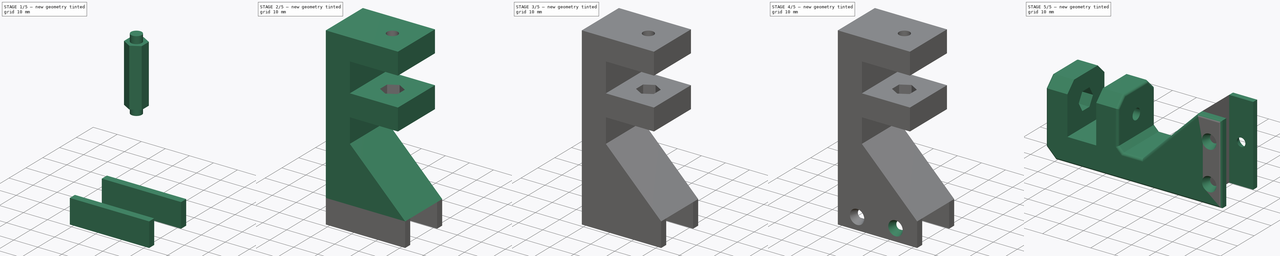
[diagram: build sequence overview — one tinted view per stage of 5, left to right]
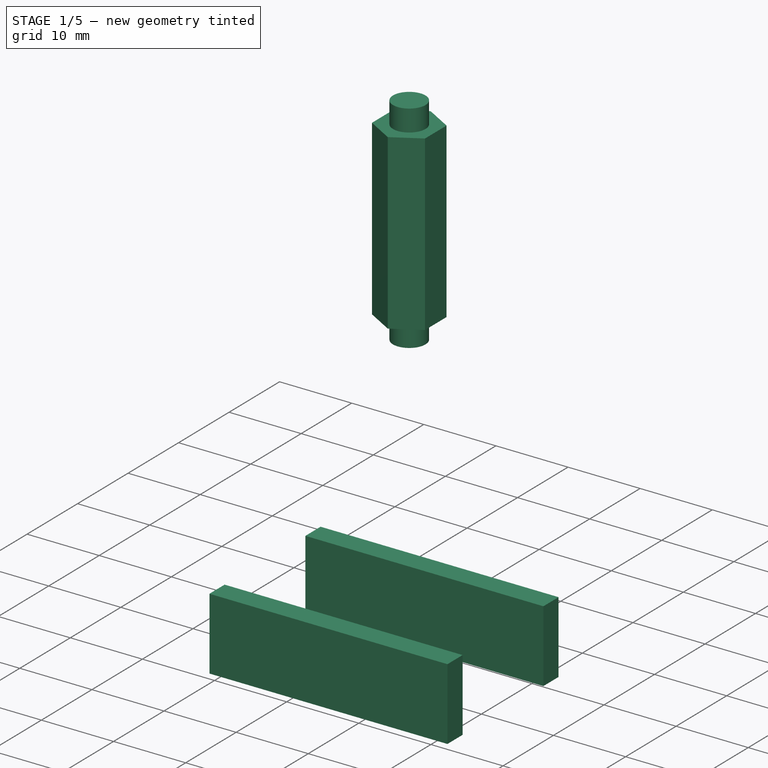
[diagram: stage 1 of 5 — iso view after this stage's code; geometry added in this stage tinted green]
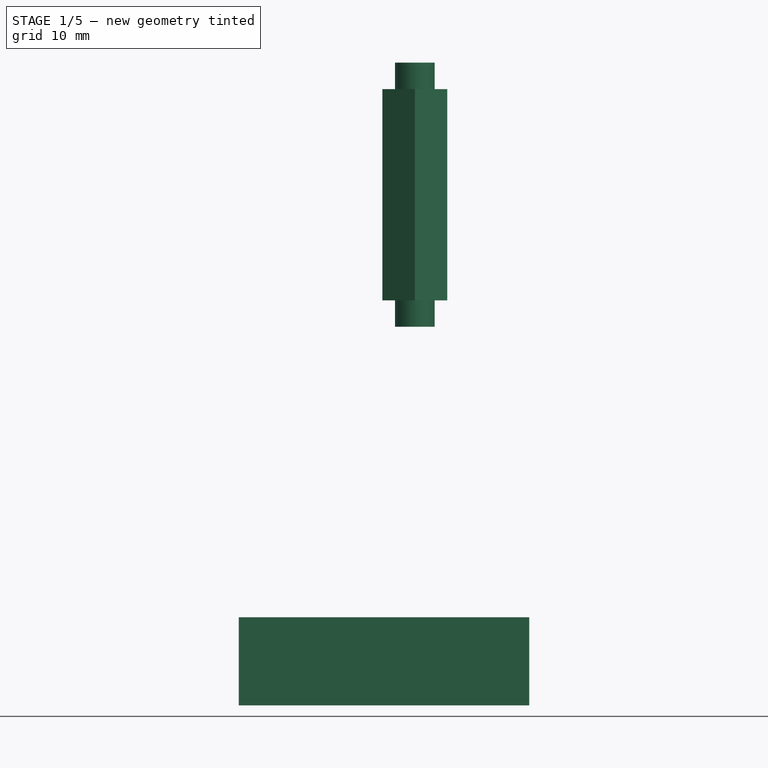
[diagram: stage 1 of 5 — front view after this stage's code; geometry added in this stage tinted green]
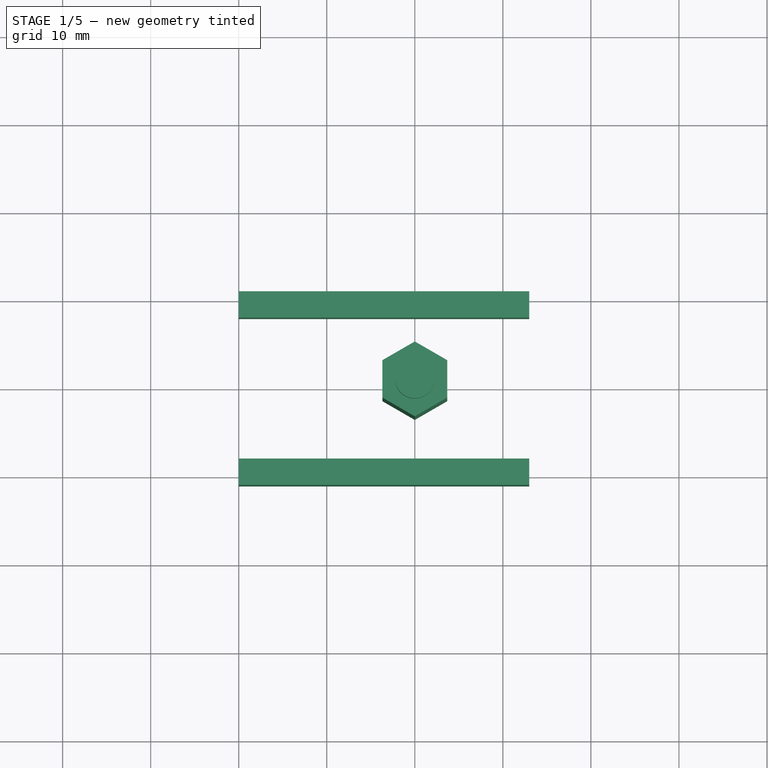
[diagram: stage 1 of 5 — top view after this stage's code; geometry added in this stage tinted green]
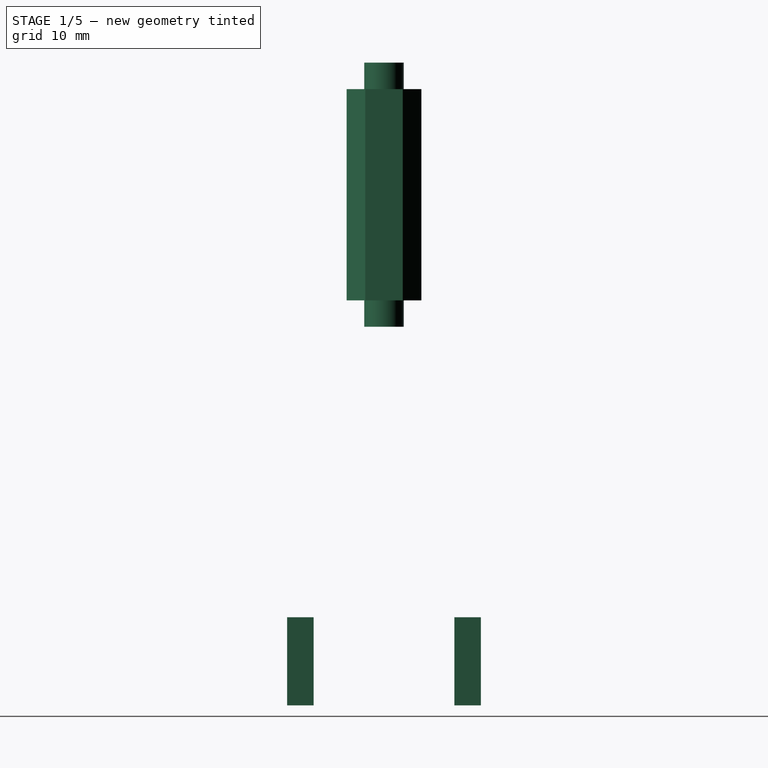
[diagram: stage 1 of 5 — right view after this stage's code; geometry added in this stage tinted green]
FCSTD DOCUMENT  (FreeCAD 0.15R4671 (Git))
Label: bed-holder-CNC
License: CC-BY 3.0
LicenseURL: http://creativecommons.org/licenses/by/3.0/
objects: Part::Cut×5, Part::Cone×3, Part::Chamfer×3, Sketcher::SketchObject×2, PartDesign::Pad×2, Part::Box×2, Part::Cylinder×1, Part::MultiFuse×1, Part::Fillet×1
note: 22 computed .brp shape members not serialized (recipe doc carries the construction recipe); baked Part::Feature solids carry a one-line shape summary decoded from their .brp

FEATURE [Sketcher::SketchObject] Sketch001  label="Sketch-femella-M4"
  Placement = pos=(20,-10,36) rot=(0,0,1;0rad)
  sketch-geometry (7):
    g0: LineSegment StartX=3.68061 StartY=-2.125 StartZ=0 EndX=3.68061 EndY=2.125 EndZ=0
    g1: LineSegment StartX=3.68061 StartY=2.125 StartZ=0 EndX=0 EndY=4.25 EndZ=0
    g2: LineSegment StartX=0 StartY=4.25 StartZ=0 EndX=-3.68061 EndY=2.125 EndZ=0
    g3: LineSegment StartX=-3.68061 StartY=2.125 StartZ=0 EndX=-3.68061 EndY=-2.125 EndZ=0
    g4: LineSegment StartX=-3.68061 StartY=-2.125 StartZ=0 EndX=0 EndY=-4.25 EndZ=0
    g5: LineSegment StartX=0 StartY=-4.25 StartZ=0 EndX=3.68061 EndY=-2.125 EndZ=0
    g6: Circle [constr] CenterX=0 CenterY=0 CenterZ=0 NormalX=0 NormalY=0 NormalZ=1 Radius=4.25
  constraints (16):
    c: Coincident(g0,g1)
    c: Coincident(g1,g2)
    c: Coincident(g2,g3)
    c: Coincident(g3,g4)
    c: Coincident(g4,g5)
    c: Coincident(g5,g0)
    c: Equal(g0, g1-g5) x5
    c: PointOnObject(g0,g6)
    c: PointOnObject(g1,g6)
    c: PointOnObject(g2,g6)
    c: PointOnObject(g3,g6)
    c: PointOnObject(g4,g6)
    c: PointOnObject(g5,g6)
    c: Coincident(g6,g-1)
    c: PointOnObject(g1,g-2)
    c: Radius(g6) = 4.25
FEATURE [PartDesign::Pad] Pad001  label="espai-hex-M4"
  Length = 24
  Length2 = 100
  Placement = pos=(20,-10,36) rot=(0,0,1;0rad)
  Sketch = -> Sketch001
  Type = 0
FEATURE [Part::Cylinder] Cylinder  label="varilla-M4"
  Angle = 360
  Height = 30
  Placement = pos=(20,-10,33) rot=(0,0,1;0rad)
  Radius = 2.25
FEATURE [Part::Box] Box  label="pared-001"
  Height = 10
  Length = 33
  Placement = pos=(0,-2,-10) rot=(0,0,1;0rad)
  Width = 3
FEATURE [Part::Box] Box001  label="pared-002"
  Height = 10
  Length = 33
  Placement = pos=(0,-21,-10) rot=(0,0,1;0rad)
  Width = 3
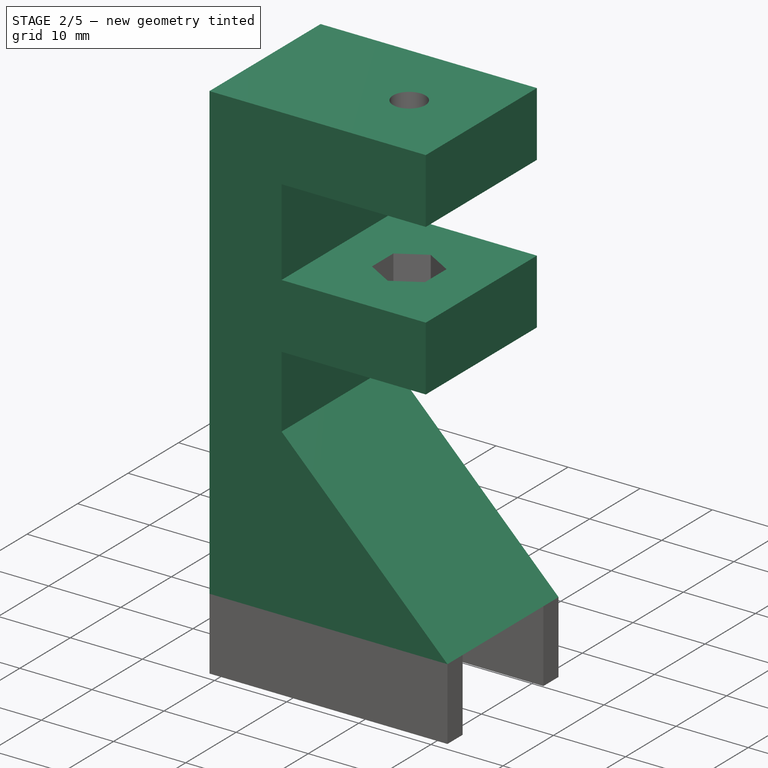
[diagram: stage 2 of 5 — iso view after this stage's code; geometry added in this stage tinted green]
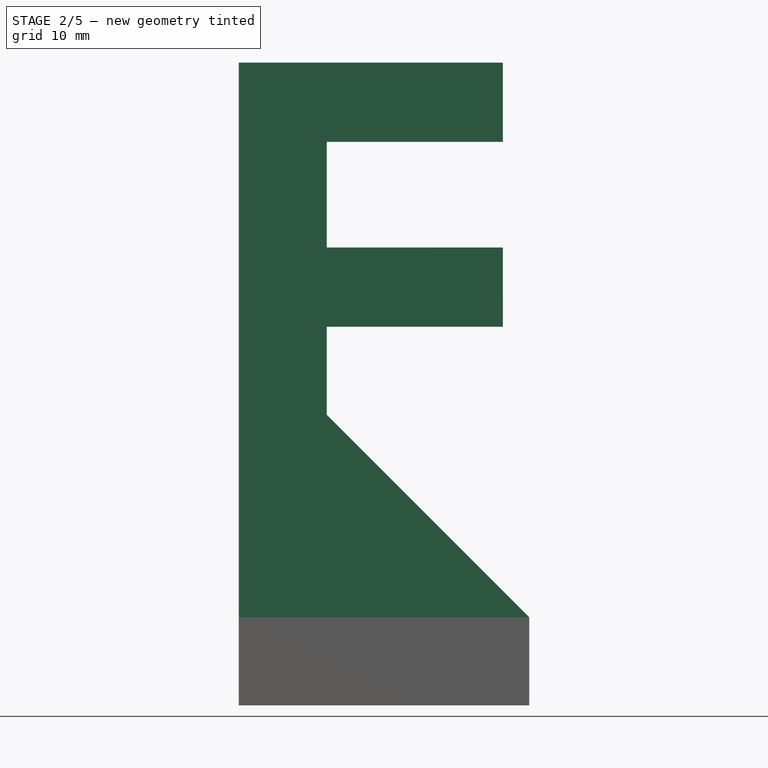
[diagram: stage 2 of 5 — front view after this stage's code; geometry added in this stage tinted green]
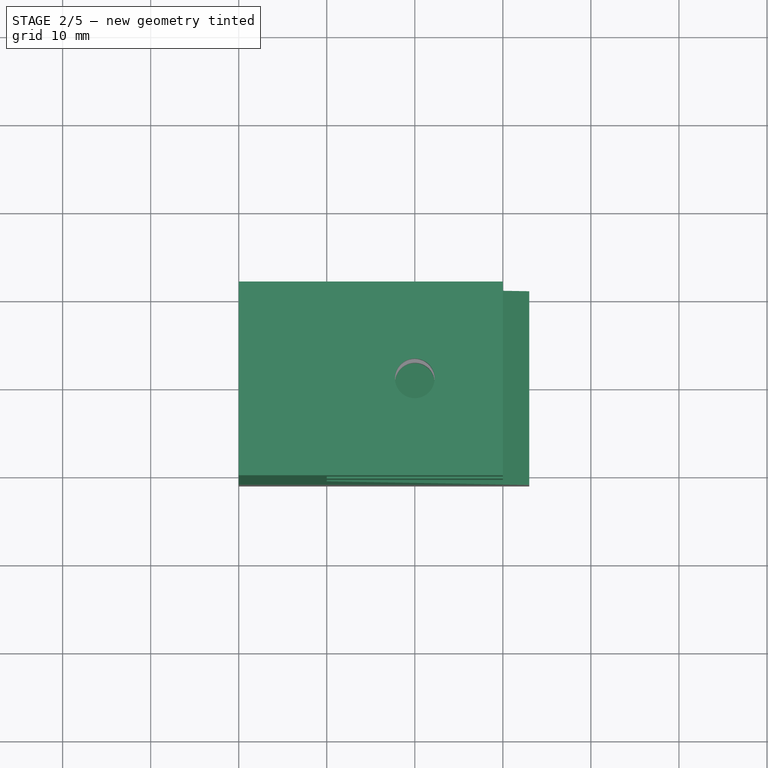
[diagram: stage 2 of 5 — top view after this stage's code; geometry added in this stage tinted green]
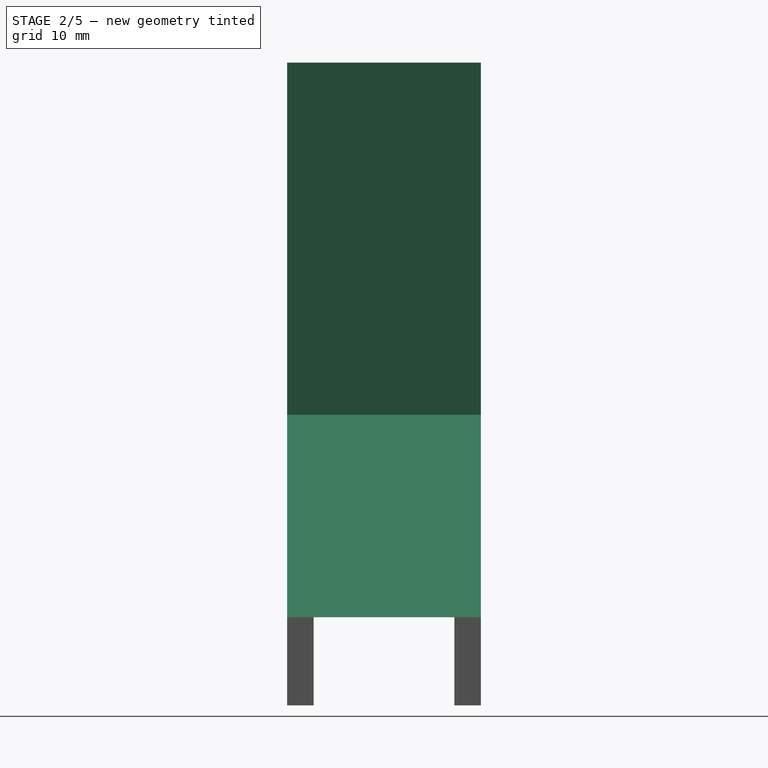
[diagram: stage 2 of 5 — right view after this stage's code; geometry added in this stage tinted green]
FEATURE [Sketcher::SketchObject] Sketch  label="Sketch-perfil-inicial"
  Placement = pos=(0,1,0) rot=(1,0,0;1.5708rad)
  sketch-geometry (11):
    g0: LineSegment StartX=0 StartY=0 StartZ=0 EndX=33 EndY=0 EndZ=0
    g1: LineSegment StartX=33 StartY=0 StartZ=0 EndX=10 EndY=23 EndZ=0
    g2: LineSegment StartX=10 StartY=23 StartZ=0 EndX=10 EndY=33 EndZ=0
    g3: LineSegment StartX=10 StartY=33 StartZ=0 EndX=30 EndY=33 EndZ=0
    g4: LineSegment StartX=30 StartY=33 StartZ=0 EndX=30 EndY=42 EndZ=0
    g5: LineSegment StartX=0 StartY=63 StartZ=0 EndX=0 EndY=0 EndZ=0
    g6: LineSegment StartX=30 StartY=42 StartZ=0 EndX=10 EndY=42 EndZ=0
    g7: LineSegment StartX=10 StartY=42 StartZ=0 EndX=10 EndY=54 EndZ=0
    g8: LineSegment StartX=10 StartY=54 StartZ=0 EndX=30 EndY=54 EndZ=0
    g9: LineSegment StartX=30 StartY=54 StartZ=0 EndX=30 EndY=63 EndZ=0
    g10: LineSegment StartX=30 StartY=63 StartZ=0 EndX=0 EndY=63 EndZ=0
  constraints (32):
    c: Coincident(g0,g1)
    c: Coincident(g1,g2)
    c: Coincident(g2,g3)
    c: Coincident(g3,g4)
    c: Coincident(g0,g5)
    c: Coincident(g0,g-1)
    c: PointOnObject(g5,g-2)
    c: Vertical(g2)
    c: Angle(g1,g0) = 0.785398
    c: DistanceX(g-1,g1) = 10
    c: Vertical(g4)
    c: DistanceY(g4) = 9
    c: DistanceY(g2) = 10
    c: PointOnObject(g0,g-1)
    c: Horizontal(g3)
    c: Coincident(g6,g7)
    c: Coincident(g7,g8)
    c: Coincident(g8,g9)
    c: Coincident(g9,g10)
    c: Coincident(g10,g5)
    c: Horizontal(g10)
    c: Vertical(g9)
    c: DistanceY(g7) = 12
    c: Horizontal(g8)
    c: DistanceY(g6,g0) = -42
    c: DistanceX(g2,g3) = 20
    c: Coincident(g4,g6)
    c: Horizontal(g6)
    c: Equal(g8,g6)
    c: Equal(g9,g4)
    c: Vertical(g7)
    c: DistanceX(g5,g7) = 10
FEATURE [PartDesign::Pad] Pad
  Length = 22
  Length2 = 100
  Placement = pos=(0,1,0) rot=(1,0,0;1.5708rad)
  Sketch = -> Sketch
  Type = 0
FEATURE [Part::Cut] Cut  label="suport-amb-hex"
  Base = -> Pad
  Tool = -> Pad001
FEATURE [Part::Cut] Cut001  label="suport-amb-forat"
  Base = -> Cut
  Tool = -> Cylinder
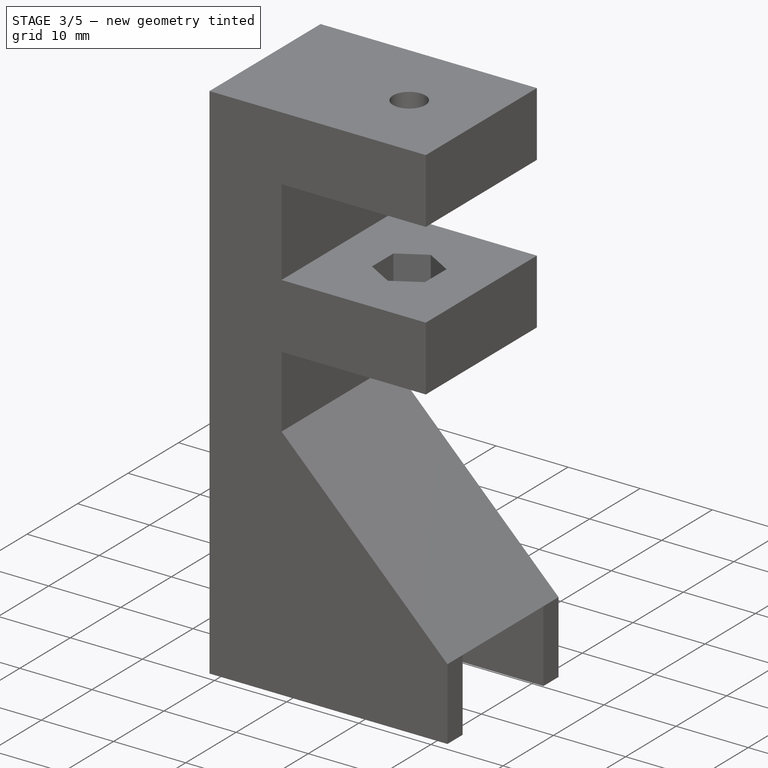
[diagram: stage 3 of 5 — iso view after this stage's code; geometry added in this stage tinted green]
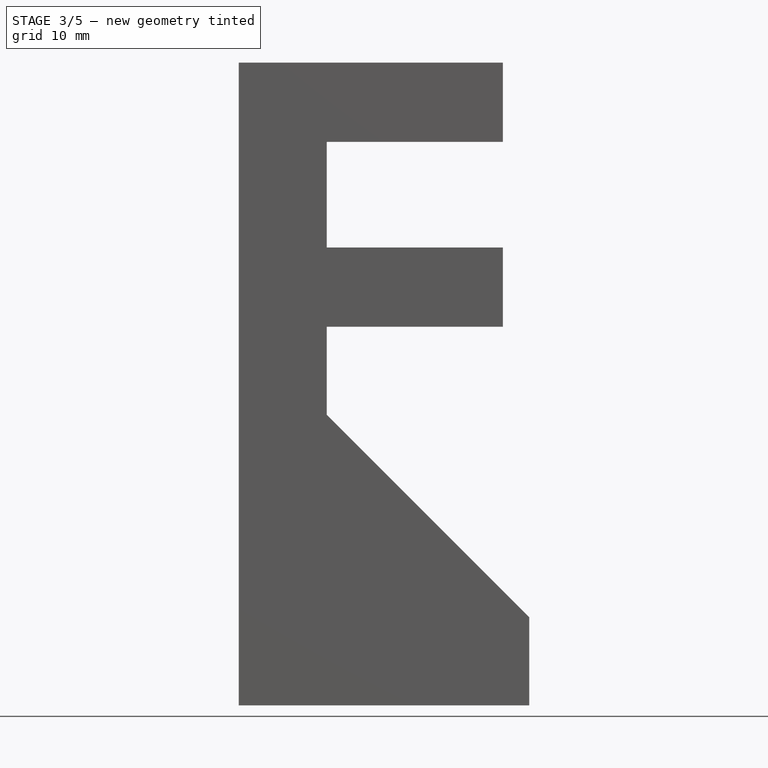
[diagram: stage 3 of 5 — front view after this stage's code; geometry added in this stage tinted green]
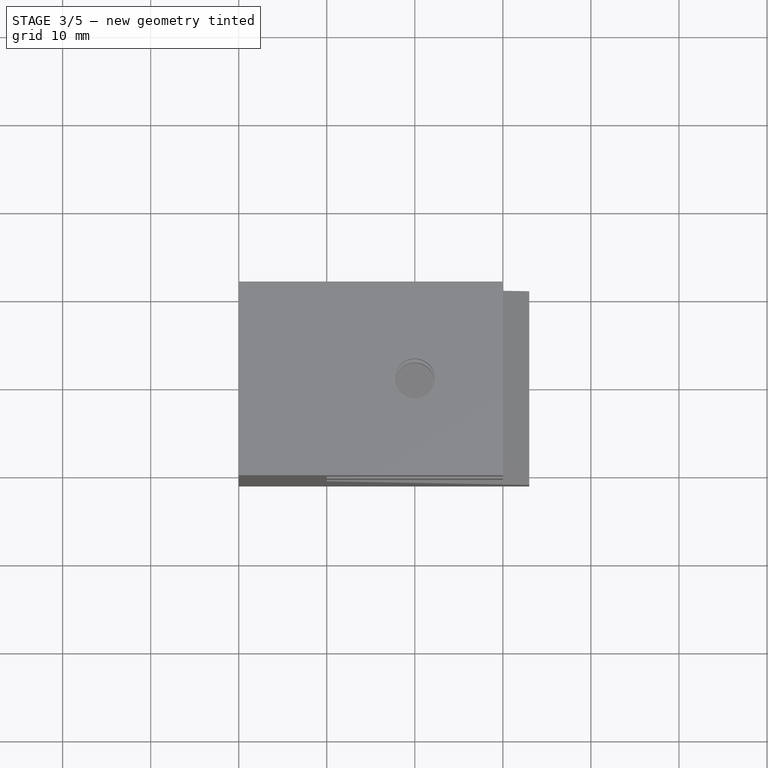
[diagram: stage 3 of 5 — top view after this stage's code; geometry added in this stage tinted green]
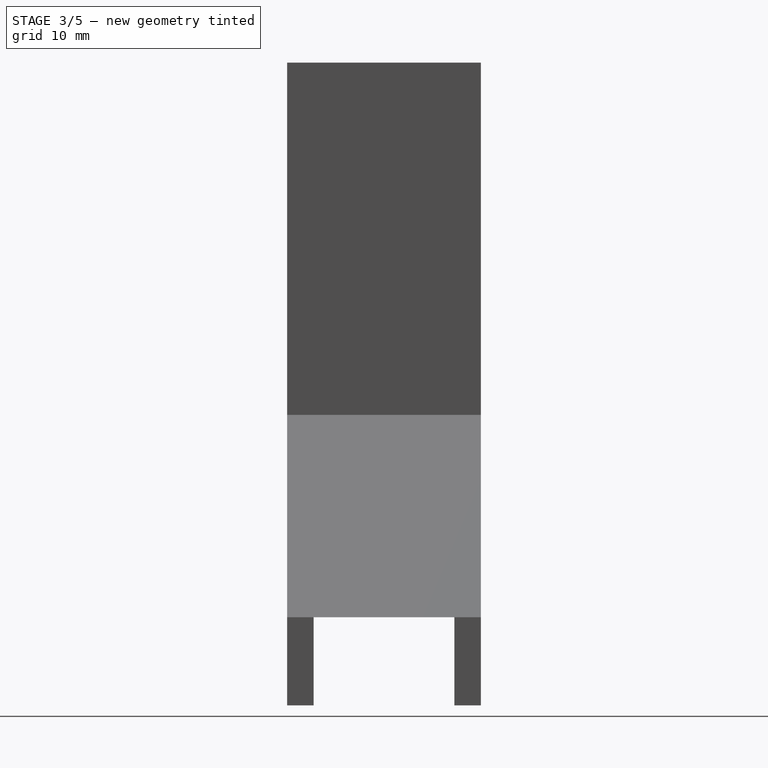
[diagram: stage 3 of 5 — right view after this stage's code; geometry added in this stage tinted green]
FEATURE [Part::Cone] Cone  label="forat-cfusta-001"
  Angle = 360
  Height = 3
  Placement = pos=(16.5,1,-5) rot=(1,0,0;1.5708rad)
  Radius1 = 3
  Radius2 = 1.75
FEATURE [Part::Cone] Cone001  label="forat-cfusta-002"
  Angle = 360
  Height = 3
  Placement = pos=(8,-21,-5) rot=(-1,0,0;1.5708rad)
  Radius1 = 3
  Radius2 = 1.75
FEATURE [Part::MultiFuse] Fusion
  Shapes = -> [Cut001,Box,Box001]
FEATURE [Part::Cut] Cut002
  Base = -> Fusion
  Tool = -> Cone
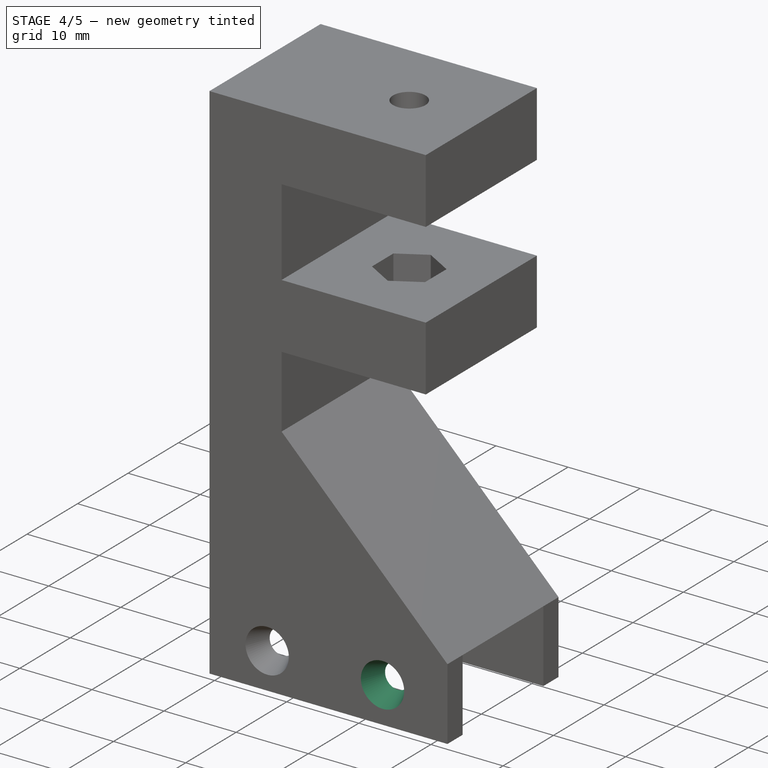
[diagram: stage 4 of 5 — iso view after this stage's code; geometry added in this stage tinted green]
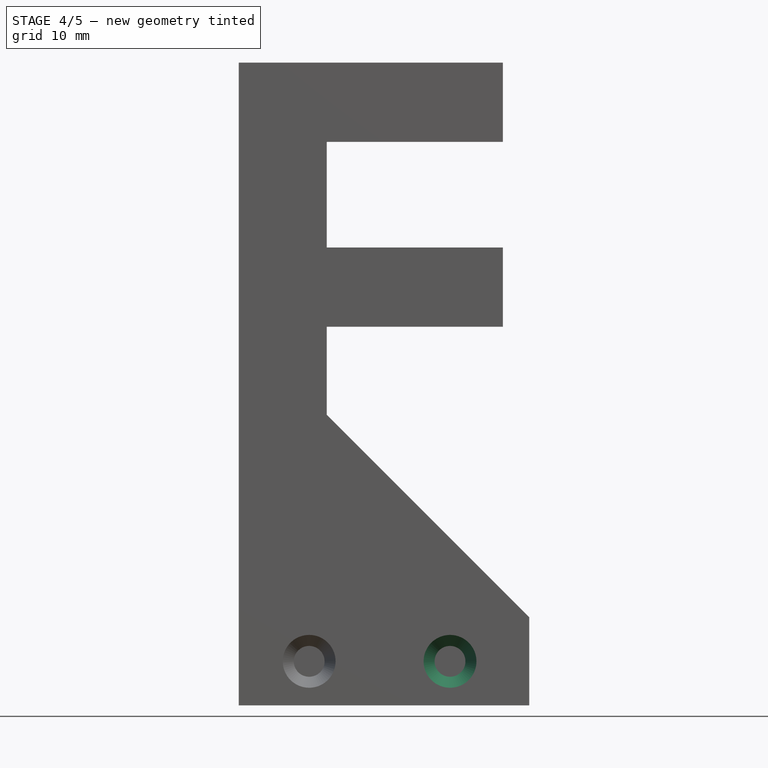
[diagram: stage 4 of 5 — front view after this stage's code; geometry added in this stage tinted green]
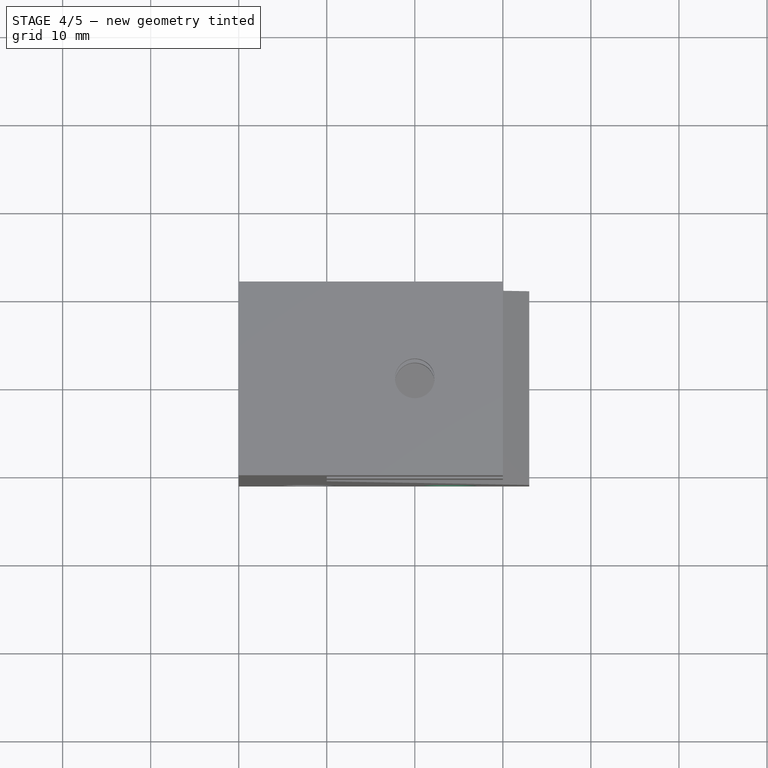
[diagram: stage 4 of 5 — top view after this stage's code; geometry added in this stage tinted green]
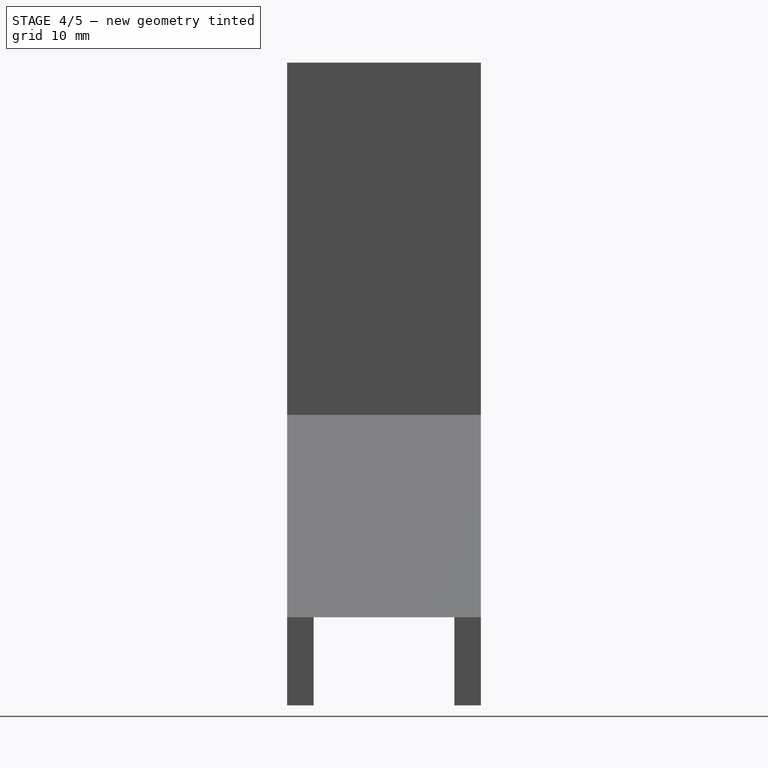
[diagram: stage 4 of 5 — right view after this stage's code; geometry added in this stage tinted green]
FEATURE [Part::Cone] Cone002  label="forat-cfusta-003"
  Angle = 360
  Height = 3
  Placement = pos=(24,-21,-5) rot=(-1,0,0;1.5708rad)
  Radius1 = 3
  Radius2 = 1.75
FEATURE [Part::Cut] Cut003
  Base = -> Cut002
  Tool = -> Cone001
FEATURE [Part::Cut] Cut004
  Base = -> Cut003
  Tool = -> Cone002
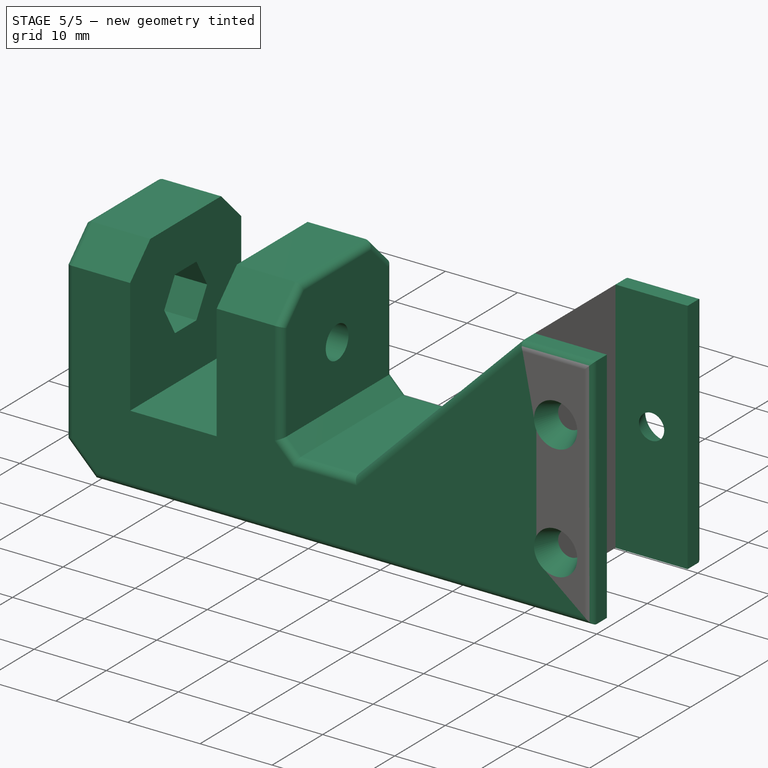
[diagram: stage 5 of 5 — iso view after this stage's code; geometry added in this stage tinted green]
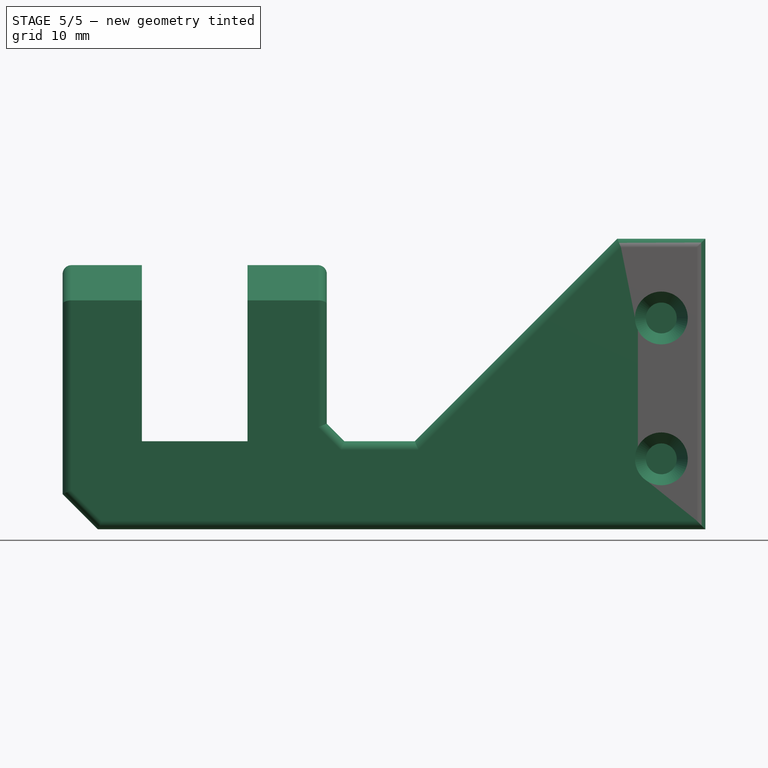
[diagram: stage 5 of 5 — front view after this stage's code; geometry added in this stage tinted green]
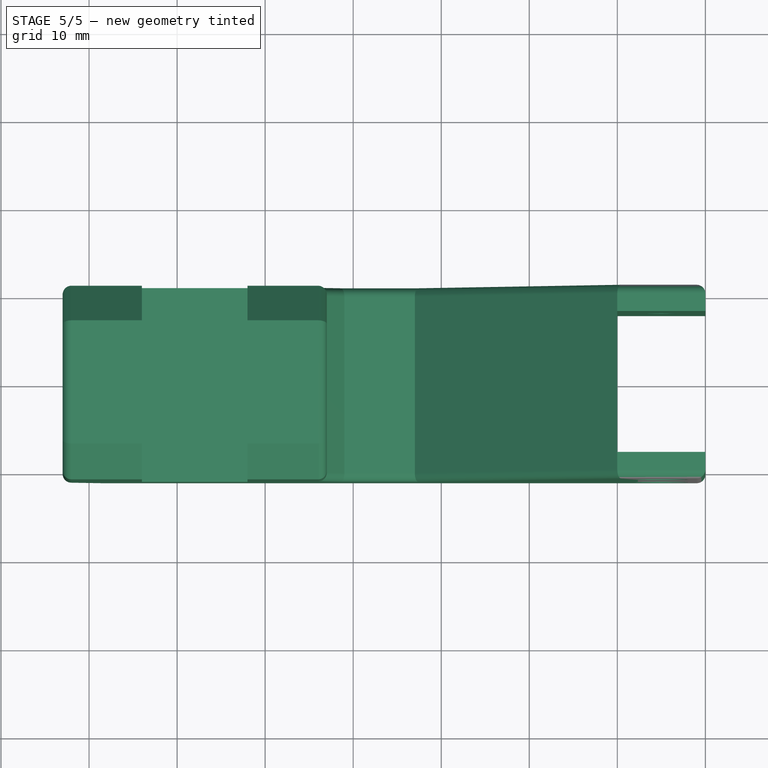
[diagram: stage 5 of 5 — top view after this stage's code; geometry added in this stage tinted green]
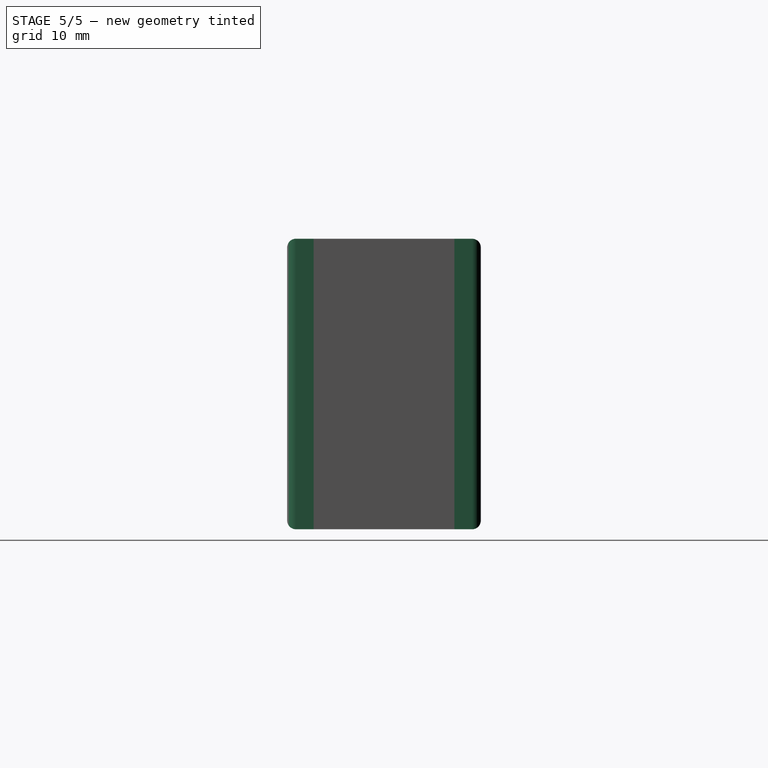
[diagram: stage 5 of 5 — right view after this stage's code; geometry added in this stage tinted green]
FEATURE [Part::Chamfer] Chamfer
  Base = -> Cut004
  Edges = 1 edges r=2: [Edge53]
FEATURE [Part::Chamfer] Chamfer001
  Base = -> Chamfer
  Edges = 4 edges r=4: [Edge6,Edge13,Edge31,Edge61]
FEATURE [Part::Chamfer] Chamfer002
  Base = -> Chamfer001
  Edges = 1 edges r=4: [Edge63]
FEATURE [Part::Fillet] Fillet  label="bed-holder-CNC"
  Base = -> Chamfer002
  Edges = 24 edges r=1: [Edge1,Edge2,Edge4,Edge6,Edge8,Edge10,Edge12,Edge13,Edge14,Edge17,Edge19,Edge20,Edge21,Edge23,Edge28,Edge60,Edge63,Edge65,Edge67,Edge68,Edge70,Edge72,Edge78,Edge79]
  Placement = pos=(0,0,0) rot=(0,-1,0;1.5708rad)
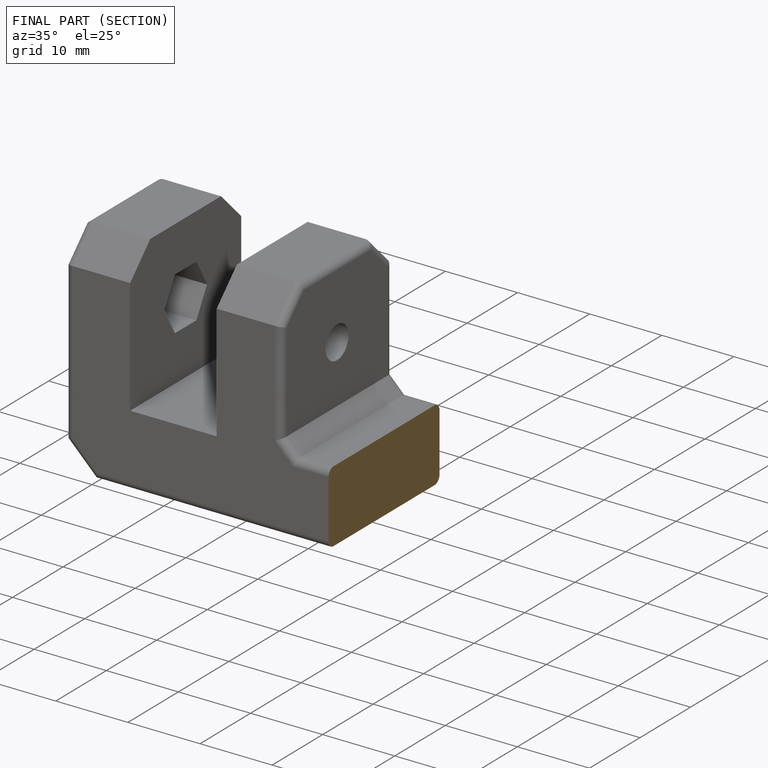
[diagram: finished part — half-section view (interior)]
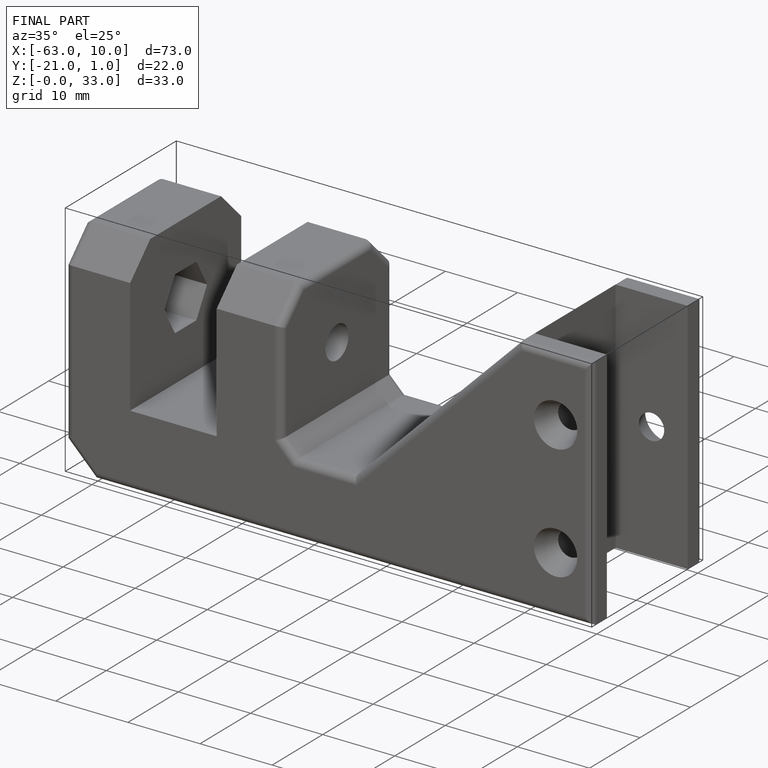
[diagram: finished part — iso view with bounding-box wireframe]
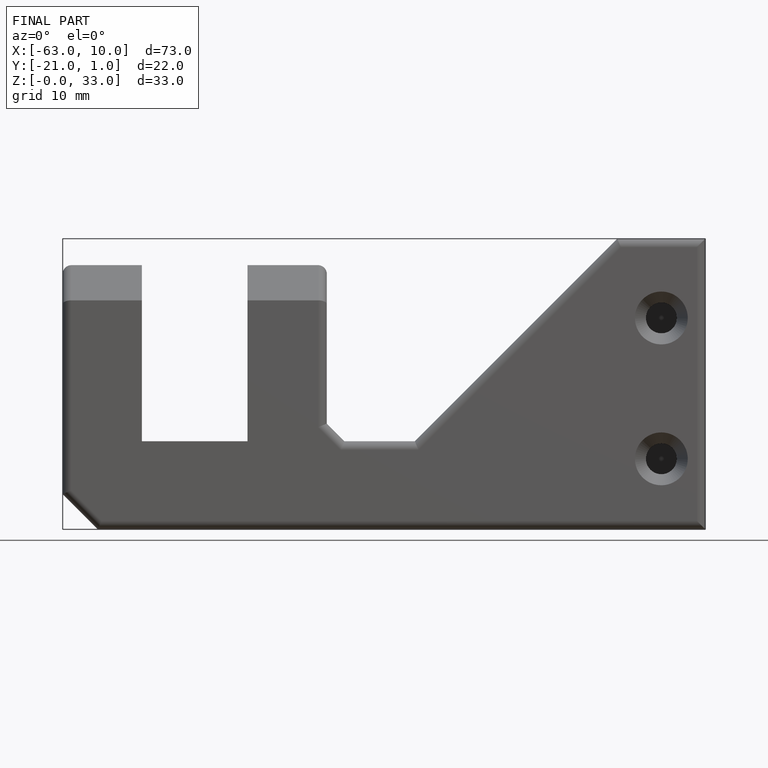
[diagram: finished part — front view with bounding-box wireframe]
